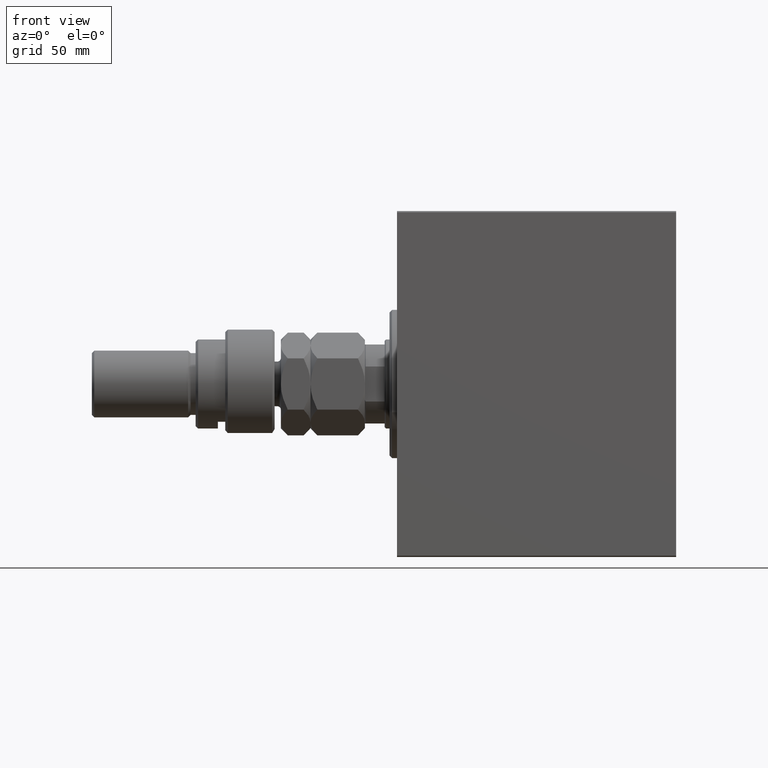
[diagram: clean part render]
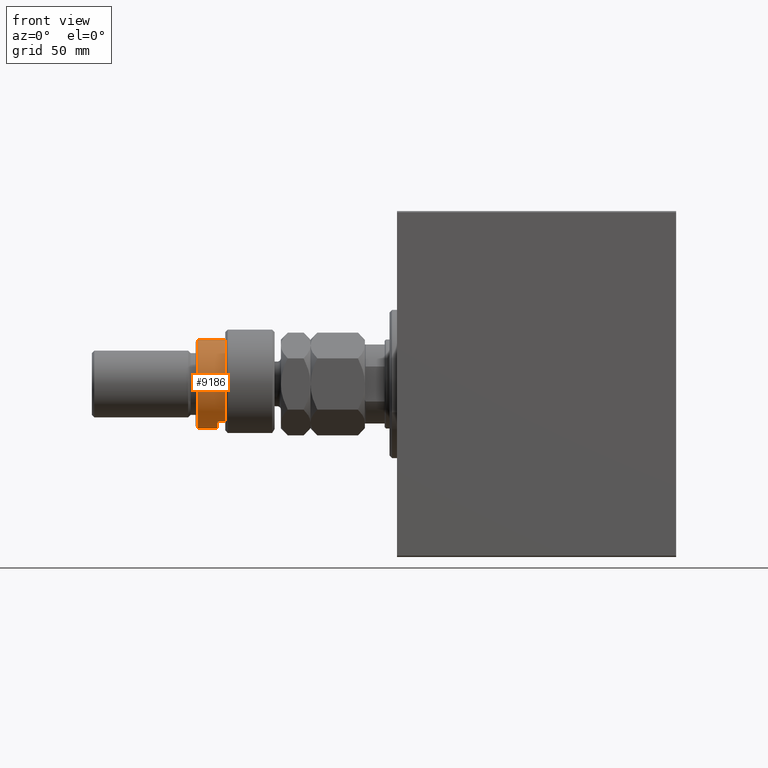
[diagram: same view with one face highlighted and labeled with its STEP entity id]
A machine part, front view. The second image highlights one B-rep face of the part: STEP entity #9186.
In plain terms, the highlighted cylindrical surface (partial cylindrical patch) has radius 18 mm, axis along (1, -0, -0).
Its self-contained STEP definition (entity closure, byte-faithful):
#1426 = ORIENTED_EDGE ( 'NONE', *, *, #45036, .T. ) ;
#1427 = CARTESIAN_POINT ( 'NONE',  ( -18.00000000000000000, 0.000000000000000000, 32.00000000000000000 ) ) ;
#1433 = ORIENTED_EDGE ( 'NONE', *, *, #18343, .T. ) ;
#2024 = CARTESIAN_POINT ( 'NONE',  ( 0.000000000000000000, 0.000000000000000000, 23.00000000000000000 ) ) ;
#2264 = VECTOR ( 'NONE', #12279, 1000.000000000000000 ) ;
#4314 = VERTEX_POINT ( 'NONE', #5229 ) ;
#4316 = DIRECTION ( 'NONE',  ( 0.000000000000000000, 0.000000000000000000, 1.000000000000000000 ) ) ;
#4753 = ORIENTED_EDGE ( 'NONE', *, *, #11481, .T. ) ;
#4898 = VECTOR ( 'NONE', #21315, 1000.000000000000000 ) ;
#5229 = CARTESIAN_POINT ( 'NONE',  ( 18.00000000000000000, 2.204364238465235428E-15, 20.00000000000000000 ) ) ;
#8489 = CIRCLE ( 'NONE', #43910, 18.00000000000000000 ) ;
#9186 = ADVANCED_FACE ( 'NONE', ( #46362 ), #10241, .T. ) ;
#9489 = VERTEX_POINT ( 'NONE', #44319 ) ;
#10241 = CYLINDRICAL_SURFACE ( 'NONE', #13145, 18.00000000000000000 ) ;
#11481 = EDGE_CURVE ( 'NONE', #23232, #30452, #8489, .T. ) ;
#12279 = DIRECTION ( 'NONE',  ( -0.000000000000000000, -0.000000000000000000, -1.000000000000000000 ) ) ;
#13145 = AXIS2_PLACEMENT_3D ( 'NONE', #39282, #31737, #21803 ) ;
#13991 = CIRCLE ( 'NONE', #17045, 18.00000000000000000 ) ;
#14732 = ORIENTED_EDGE ( 'NONE', *, *, #21442, .F. ) ;
#15377 = VECTOR ( 'NONE', #27852, 1000.000000000000000 ) ;
#15757 = VERTEX_POINT ( 'NONE', #28760 ) ;
#16427 = DIRECTION ( 'NONE',  ( 0.000000000000000000, 0.000000000000000000, -1.000000000000000000 ) ) ;
#16607 = CARTESIAN_POINT ( 'NONE',  ( 0.000000000000000000, 0.000000000000000000, 30.99999999999999645 ) ) ;
#17045 = AXIS2_PLACEMENT_3D ( 'NONE', #2024, #16427, #33432 ) ;
#18343 = EDGE_CURVE ( 'NONE', #15757, #9489, #31376, .T. ) ;
#19377 = LINE ( 'NONE', #1427, #2264 ) ;
#19596 = AXIS2_PLACEMENT_3D ( 'NONE', #22258, #4316, #44422 ) ;
#21315 = DIRECTION ( 'NONE',  ( -0.000000000000000000, -0.000000000000000000, -1.000000000000000000 ) ) ;
#21442 = EDGE_CURVE ( 'NONE', #23232, #4314, #38553, .T. ) ;
#21803 = DIRECTION ( 'NONE',  ( -1.000000000000000000, 0.000000000000000000, 0.000000000000000000 ) ) ;
#22258 = CARTESIAN_POINT ( 'NONE',  ( 0.000000000000000000, 0.000000000000000000, 20.00000000000000000 ) ) ;
#23232 = VERTEX_POINT ( 'NONE', #25817 ) ;
#23885 = EDGE_CURVE ( 'NONE', #15757, #31765, #13991, .T. ) ;
#25817 = CARTESIAN_POINT ( 'NONE',  ( 18.00000000000000000, 2.204364238465235428E-15, 30.99999999999999645 ) ) ;
#27852 = DIRECTION ( 'NONE',  ( -0.000000000000000000, -0.000000000000000000, -1.000000000000000000 ) ) ;
#28760 = CARTESIAN_POINT ( 'NONE',  ( -15.28888485142065434, -9.500000000000000000, 23.00000000000000000 ) ) ;
#30452 = VERTEX_POINT ( 'NONE', #31199 ) ;
#31199 = CARTESIAN_POINT ( 'NONE',  ( -18.00000000000000000, 0.000000000000000000, 30.99999999999999645 ) ) ;
#31376 = LINE ( 'NONE', #45768, #15377 ) ;
#31737 = DIRECTION ( 'NONE',  ( -0.000000000000000000, -0.000000000000000000, -1.000000000000000000 ) ) ;
#31765 = VERTEX_POINT ( 'NONE', #41998 ) ;
#33061 = ORIENTED_EDGE ( 'NONE', *, *, #38024, .T. ) ;
#33432 = DIRECTION ( 'NONE',  ( -1.000000000000000000, 0.000000000000000000, 0.000000000000000000 ) ) ;
#33991 = EDGE_LOOP ( 'NONE', ( #14732, #4753, #1426, #42347, #1433, #33061 ) ) ;
#35480 = CARTESIAN_POINT ( 'NONE',  ( 18.00000000000000000, 2.204364238465235428E-15, 32.00000000000000000 ) ) ;
#37605 = DIRECTION ( 'NONE',  ( 1.000000000000000000, 0.000000000000000000, 0.000000000000000000 ) ) ;
#38024 = EDGE_CURVE ( 'NONE', #9489, #4314, #43690, .T. ) ;
#38085 = DIRECTION ( 'NONE',  ( 0.000000000000000000, 0.000000000000000000, -1.000000000000000000 ) ) ;
#38553 = LINE ( 'NONE', #35480, #4898 ) ;
#39282 = CARTESIAN_POINT ( 'NONE',  ( 0.000000000000000000, 0.000000000000000000, 32.00000000000000000 ) ) ;
#41998 = CARTESIAN_POINT ( 'NONE',  ( -18.00000000000000000, 0.000000000000000000, 23.00000000000000000 ) ) ;
#42347 = ORIENTED_EDGE ( 'NONE', *, *, #23885, .F. ) ;
#43690 = CIRCLE ( 'NONE', #19596, 18.00000000000000000 ) ;
#43910 = AXIS2_PLACEMENT_3D ( 'NONE', #16607, #38085, #37605 ) ;
#44319 = CARTESIAN_POINT ( 'NONE',  ( -15.28888485142065434, -9.500000000000000000, 19.99999999999999645 ) ) ;
#44422 = DIRECTION ( 'NONE',  ( 1.000000000000000000, 0.000000000000000000, 0.000000000000000000 ) ) ;
#45036 = EDGE_CURVE ( 'NONE', #30452, #31765, #19377, .T. ) ;
#45768 = CARTESIAN_POINT ( 'NONE',  ( -15.28888485142065434, -9.500000000000000000, 32.00000000000000000 ) ) ;
#46362 = FACE_OUTER_BOUND ( 'NONE', #33991, .T. ) ;